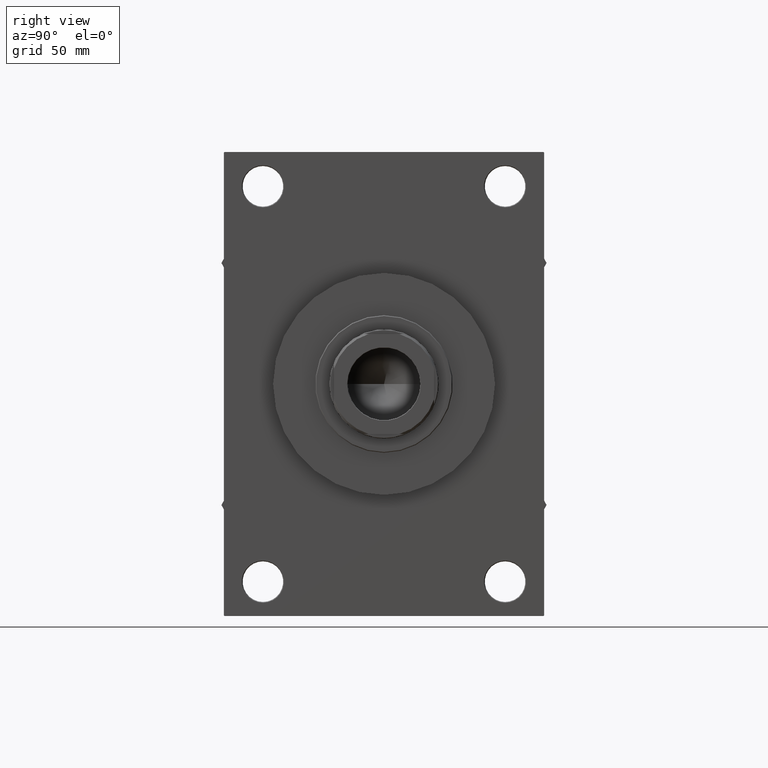
[diagram: clean part render]
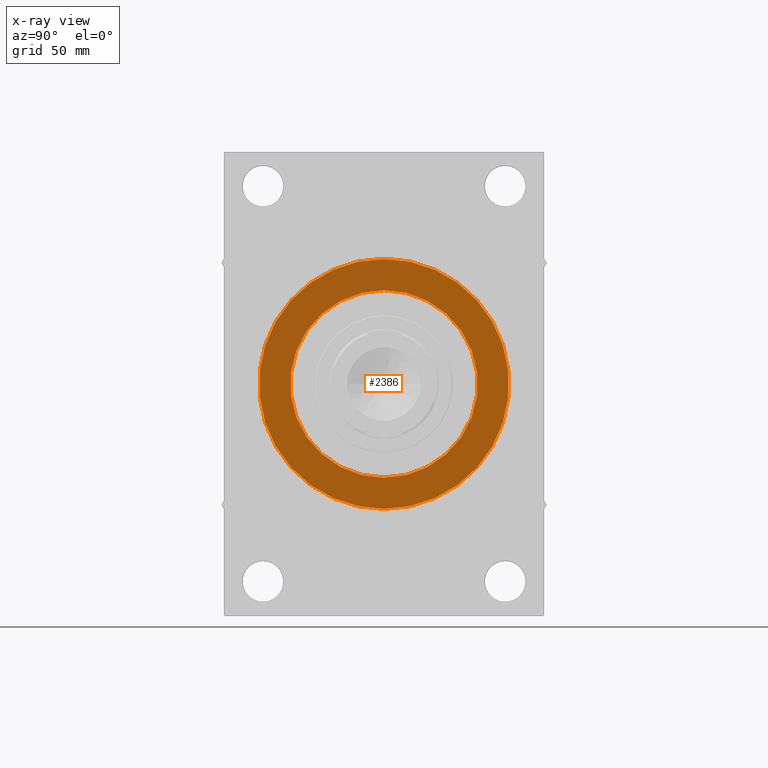
[diagram: x-ray — body ghosted, one internal face saturated and labeled with its STEP entity id]
A machine part, right view, then the same camera in x-ray: the body is ghosted and one INTERNAL B-rep face — a face not visible from any outside direction — is saturated and labeled: STEP entity #2386.
In plain terms, the highlighted planar face has unit normal (-1, 0, 0).
Its self-contained STEP definition (entity closure, byte-faithful):
#34 = DIRECTION ( 'NONE',  ( 1.000000000000000000, 0.000000000000000000, 0.000000000000000000 ) ) ;
#359 = CARTESIAN_POINT ( 'NONE',  ( 150.0000000000000000, -2.602085213965210642E-15, 0.000000000000000000 ) ) ;
#2257 = CIRCLE ( 'NONE', #18399, 80.00000000000000000 ) ;
#2386 = ADVANCED_FACE ( 'NONE', ( #40807, #19111 ), #7792, .T. ) ;
#2711 = ORIENTED_EDGE ( 'NONE', *, *, #27801, .F. ) ;
#4165 = DIRECTION ( 'NONE',  ( -1.000000000000000000, 0.000000000000000000, -0.000000000000000000 ) ) ;
#4535 = CARTESIAN_POINT ( 'NONE',  ( 150.0000000000000000, 0.000000000000000000, -60.00000000000000000 ) ) ;
#5799 = VERTEX_POINT ( 'NONE', #12701 ) ;
#6761 = CARTESIAN_POINT ( 'NONE',  ( 150.0000000000000000, 0.000000000000000000, 0.000000000000000000 ) ) ;
#7592 = AXIS2_PLACEMENT_3D ( 'NONE', #6761, #21470, #36172 ) ;
#7792 = PLANE ( 'NONE',  #18826 ) ;
#8335 = DIRECTION ( 'NONE',  ( -1.000000000000000000, 0.000000000000000000, -0.000000000000000000 ) ) ;
#8698 = EDGE_CURVE ( 'NONE', #46776, #35180, #17540, .T. ) ;
#9845 = AXIS2_PLACEMENT_3D ( 'NONE', #44241, #8335, #47623 ) ;
#9876 = ORIENTED_EDGE ( 'NONE', *, *, #16471, .F. ) ;
#11884 = DIRECTION ( 'NONE',  ( -0.000000000000000000, 0.000000000000000000, 1.000000000000000000 ) ) ;
#12473 = CARTESIAN_POINT ( 'NONE',  ( 150.0000000000000000, -2.602085213965210642E-15, 80.00000000000000000 ) ) ;
#12701 = CARTESIAN_POINT ( 'NONE',  ( 150.0000000000000000, 7.195089179213615410E-15, -80.00000000000000000 ) ) ;
#15083 = DIRECTION ( 'NONE',  ( 1.000000000000000000, 0.000000000000000000, 0.000000000000000000 ) ) ;
#16471 = EDGE_CURVE ( 'NONE', #30688, #5799, #2257, .T. ) ;
#17540 = CIRCLE ( 'NONE', #9845, 60.00000000000000000 ) ;
#18355 = EDGE_LOOP ( 'NONE', ( #9876, #2711 ) ) ;
#18399 = AXIS2_PLACEMENT_3D ( 'NONE', #33790, #34, #29441 ) ;
#18826 = AXIS2_PLACEMENT_3D ( 'NONE', #37187, #4165, #11884 ) ;
#19111 = FACE_OUTER_BOUND ( 'NONE', #18355, .T. ) ;
#19843 = CARTESIAN_POINT ( 'NONE',  ( 150.0000000000000000, 7.347880794884118356E-15, 60.00000000000000000 ) ) ;
#21470 = DIRECTION ( 'NONE',  ( -1.000000000000000000, 0.000000000000000000, -0.000000000000000000 ) ) ;
#25001 = ORIENTED_EDGE ( 'NONE', *, *, #41033, .F. ) ;
#27801 = EDGE_CURVE ( 'NONE', #5799, #30688, #44057, .T. ) ;
#29441 = DIRECTION ( 'NONE',  ( 0.000000000000000000, 0.000000000000000000, -1.000000000000000000 ) ) ;
#29772 = DIRECTION ( 'NONE',  ( 0.000000000000000000, 0.000000000000000000, -1.000000000000000000 ) ) ;
#30688 = VERTEX_POINT ( 'NONE', #12473 ) ;
#33790 = CARTESIAN_POINT ( 'NONE',  ( 150.0000000000000000, -2.602085213965210642E-15, 0.000000000000000000 ) ) ;
#33800 = CIRCLE ( 'NONE', #7592, 60.00000000000000000 ) ;
#34253 = EDGE_LOOP ( 'NONE', ( #41128, #25001 ) ) ;
#35180 = VERTEX_POINT ( 'NONE', #19843 ) ;
#36172 = DIRECTION ( 'NONE',  ( 0.000000000000000000, 0.000000000000000000, 1.000000000000000000 ) ) ;
#37187 = CARTESIAN_POINT ( 'NONE',  ( 150.0000000000000000, 0.000000000000000000, 0.000000000000000000 ) ) ;
#40807 = FACE_BOUND ( 'NONE', #34253, .T. ) ;
#41033 = EDGE_CURVE ( 'NONE', #35180, #46776, #33800, .T. ) ;
#41128 = ORIENTED_EDGE ( 'NONE', *, *, #8698, .F. ) ;
#43323 = AXIS2_PLACEMENT_3D ( 'NONE', #359, #15083, #29772 ) ;
#44057 = CIRCLE ( 'NONE', #43323, 80.00000000000000000 ) ;
#44241 = CARTESIAN_POINT ( 'NONE',  ( 150.0000000000000000, 0.000000000000000000, 0.000000000000000000 ) ) ;
#46776 = VERTEX_POINT ( 'NONE', #4535 ) ;
#47623 = DIRECTION ( 'NONE',  ( 0.000000000000000000, 0.000000000000000000, 1.000000000000000000 ) ) ;